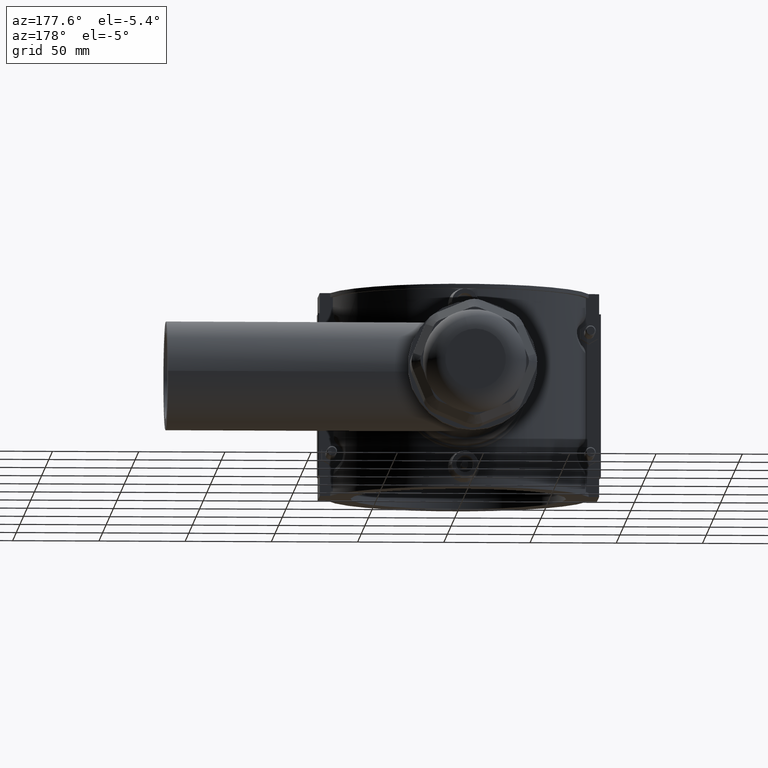
[diagram: clean part render]
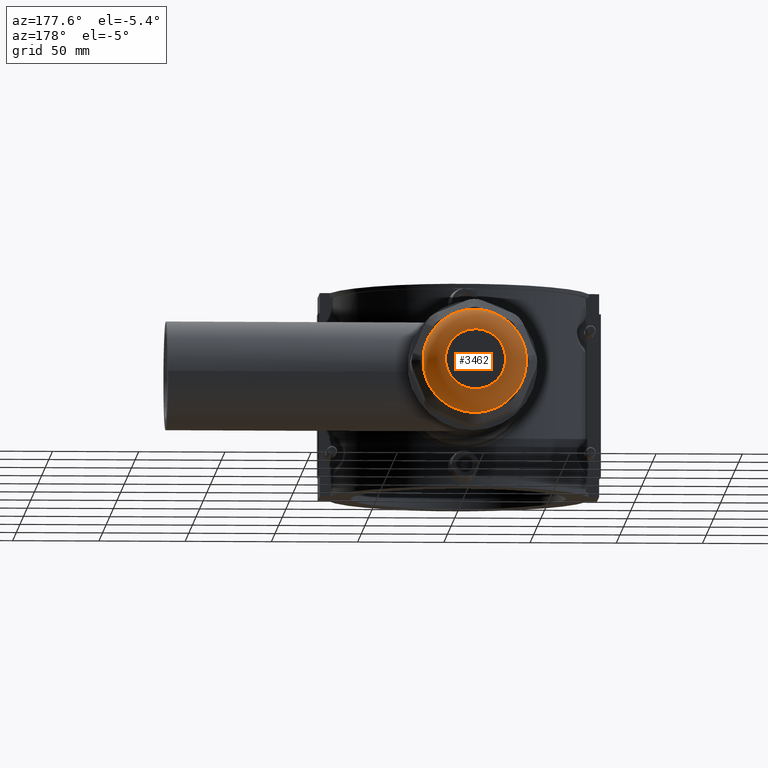
[diagram: same view with one face highlighted and labeled with its STEP entity id]
A machine part, auxiliary view. The second image highlights one B-rep face of the part: STEP entity #3462.
In plain terms, the highlighted toroidal blend (fillet) surface has major radius 17.5005 mm and minor (blend) radius 12.5 mm.
Its self-contained STEP definition (entity closure, byte-faithful):
#20=TOROIDAL_SURFACE('',#3709,17.5004840093706,12.5);
#650=FACE_BOUND('',#1090,.T.);
#703=B_SPLINE_CURVE_WITH_KNOTS('',3,(#5245,#5246,#5247,#5248,#5249,#5250,
#5251),.UNSPECIFIED.,.F.,.F.,(4,3,4),(-0.43798832508579,0.,0.43798832508579),
 .UNSPECIFIED.);
#704=B_SPLINE_CURVE_WITH_KNOTS('',3,(#5270,#5271,#5272,#5273,#5274,#5275,
#5276),.UNSPECIFIED.,.F.,.F.,(4,3,4),(-0.437988325085781,0.,0.437988325085782),
 .UNSPECIFIED.);
#705=B_SPLINE_CURVE_WITH_KNOTS('',3,(#5292,#5293,#5294,#5295,#5296,#5297,
#5298),.UNSPECIFIED.,.F.,.F.,(4,3,4),(-0.437988325085785,0.,0.437988325085785),
 .UNSPECIFIED.);
#706=B_SPLINE_CURVE_WITH_KNOTS('',3,(#5314,#5315,#5316,#5317,#5318,#5319,
#5320),.UNSPECIFIED.,.F.,.F.,(4,3,4),(-0.43798832508578,0.,0.43798832508578),
 .UNSPECIFIED.);
#707=B_SPLINE_CURVE_WITH_KNOTS('',3,(#5336,#5337,#5338,#5339,#5340,#5341,
#5342),.UNSPECIFIED.,.F.,.F.,(4,3,4),(-0.437988325085781,0.,0.437988325085781),
 .UNSPECIFIED.);
#708=B_SPLINE_CURVE_WITH_KNOTS('',3,(#5358,#5359,#5360,#5361,#5362,#5363,
#5364),.UNSPECIFIED.,.F.,.F.,(4,3,4),(-0.437988325085785,0.,0.437988325085785),
 .UNSPECIFIED.);
#709=B_SPLINE_CURVE_WITH_KNOTS('',3,(#5380,#5381,#5382,#5383,#5384,#5385,
#5386),.UNSPECIFIED.,.F.,.F.,(4,3,4),(-0.437988325085781,0.,0.437988325085781),
 .UNSPECIFIED.);
#710=B_SPLINE_CURVE_WITH_KNOTS('',3,(#5402,#5403,#5404,#5405,#5406,#5407,
#5408),.UNSPECIFIED.,.F.,.F.,(4,3,4),(-0.437988325085786,0.,0.437988325085785),
 .UNSPECIFIED.);
#870=FACE_OUTER_BOUND('',#1089,.T.);
#1089=EDGE_LOOP('',(#2434,#2435,#2436,#2437,#2438,#2439,#2440,#2441,#2442,
#2443,#2444,#2445,#2446,#2447,#2448,#2449));
#1090=EDGE_LOOP('',(#2450));
#1329=CIRCLE('',#3678,30.);
#1330=CIRCLE('',#3680,30.);
#1331=CIRCLE('',#3682,30.);
#1332=CIRCLE('',#3684,30.);
#1333=CIRCLE('',#3686,30.);
#1334=CIRCLE('',#3688,30.);
#1335=CIRCLE('',#3690,30.);
#1336=CIRCLE('',#3692,30.);
#1343=CIRCLE('',#3710,17.5004840093706);
#1444=VERTEX_POINT('',#5243);
#1445=VERTEX_POINT('',#5244);
#1452=VERTEX_POINT('',#5268);
#1453=VERTEX_POINT('',#5269);
#1458=VERTEX_POINT('',#5290);
#1459=VERTEX_POINT('',#5291);
#1464=VERTEX_POINT('',#5312);
#1465=VERTEX_POINT('',#5313);
#1470=VERTEX_POINT('',#5334);
#1471=VERTEX_POINT('',#5335);
#1476=VERTEX_POINT('',#5356);
#1477=VERTEX_POINT('',#5357);
#1482=VERTEX_POINT('',#5378);
#1483=VERTEX_POINT('',#5379);
#1488=VERTEX_POINT('',#5400);
#1489=VERTEX_POINT('',#5401);
#1503=VERTEX_POINT('',#5475);
#1781=EDGE_CURVE('',#1444,#1445,#703,.T.);
#1790=EDGE_CURVE('',#1452,#1453,#704,.T.);
#1798=EDGE_CURVE('',#1458,#1459,#705,.T.);
#1806=EDGE_CURVE('',#1464,#1465,#706,.T.);
#1814=EDGE_CURVE('',#1470,#1471,#707,.T.);
#1822=EDGE_CURVE('',#1476,#1477,#708,.T.);
#1830=EDGE_CURVE('',#1482,#1483,#709,.T.);
#1838=EDGE_CURVE('',#1488,#1489,#710,.T.);
#1845=EDGE_CURVE('',#1465,#1458,#1329,.T.);
#1846=EDGE_CURVE('',#1459,#1452,#1330,.T.);
#1847=EDGE_CURVE('',#1453,#1444,#1331,.T.);
#1848=EDGE_CURVE('',#1445,#1488,#1332,.T.);
#1849=EDGE_CURVE('',#1489,#1482,#1333,.T.);
#1850=EDGE_CURVE('',#1483,#1476,#1334,.T.);
#1851=EDGE_CURVE('',#1477,#1470,#1335,.T.);
#1852=EDGE_CURVE('',#1471,#1464,#1336,.T.);
#1872=EDGE_CURVE('',#1503,#1503,#1343,.T.);
#2434=ORIENTED_EDGE('',*,*,#1847,.T.);
#2435=ORIENTED_EDGE('',*,*,#1781,.T.);
#2436=ORIENTED_EDGE('',*,*,#1848,.T.);
#2437=ORIENTED_EDGE('',*,*,#1838,.T.);
#2438=ORIENTED_EDGE('',*,*,#1849,.T.);
#2439=ORIENTED_EDGE('',*,*,#1830,.T.);
#2440=ORIENTED_EDGE('',*,*,#1850,.T.);
#2441=ORIENTED_EDGE('',*,*,#1822,.T.);
#2442=ORIENTED_EDGE('',*,*,#1851,.T.);
#2443=ORIENTED_EDGE('',*,*,#1814,.T.);
#2444=ORIENTED_EDGE('',*,*,#1852,.T.);
#2445=ORIENTED_EDGE('',*,*,#1806,.T.);
#2446=ORIENTED_EDGE('',*,*,#1845,.T.);
#2447=ORIENTED_EDGE('',*,*,#1798,.T.);
#2448=ORIENTED_EDGE('',*,*,#1846,.T.);
#2449=ORIENTED_EDGE('',*,*,#1790,.T.);
#2450=ORIENTED_EDGE('',*,*,#1872,.T.);
#3462=ADVANCED_FACE('',(#870,#650),#20,.T.);
#3678=AXIS2_PLACEMENT_3D('',#5419,#4096,#4097);
#3680=AXIS2_PLACEMENT_3D('',#5421,#4100,#4101);
#3682=AXIS2_PLACEMENT_3D('',#5423,#4104,#4105);
#3684=AXIS2_PLACEMENT_3D('',#5425,#4108,#4109);
#3686=AXIS2_PLACEMENT_3D('',#5427,#4112,#4113);
#3688=AXIS2_PLACEMENT_3D('',#5429,#4116,#4117);
#3690=AXIS2_PLACEMENT_3D('',#5431,#4120,#4121);
#3692=AXIS2_PLACEMENT_3D('',#5433,#4124,#4125);
#3709=AXIS2_PLACEMENT_3D('',#5474,#4171,#4172);
#3710=AXIS2_PLACEMENT_3D('',#5476,#4173,#4174);
#4096=DIRECTION('center_axis',(0.,1.,3.06161699786838E-16));
#4097=DIRECTION('ref_axis',(1.,0.,0.));
#4100=DIRECTION('center_axis',(0.,1.,3.06161699786838E-16));
#4101=DIRECTION('ref_axis',(1.,0.,0.));
#4104=DIRECTION('center_axis',(0.,1.,3.06161699786838E-16));
#4105=DIRECTION('ref_axis',(1.,0.,0.));
#4108=DIRECTION('center_axis',(0.,1.,3.06161699786838E-16));
#4109=DIRECTION('ref_axis',(1.,0.,0.));
#4112=DIRECTION('center_axis',(0.,1.,3.06161699786838E-16));
#4113=DIRECTION('ref_axis',(1.,0.,0.));
#4116=DIRECTION('center_axis',(0.,1.,3.06161699786838E-16));
#4117=DIRECTION('ref_axis',(1.,0.,0.));
#4120=DIRECTION('center_axis',(0.,1.,3.06161699786838E-16));
#4121=DIRECTION('ref_axis',(1.,0.,0.));
#4124=DIRECTION('center_axis',(0.,1.,3.06161699786838E-16));
#4125=DIRECTION('ref_axis',(1.,0.,0.));
#4171=DIRECTION('center_axis',(0.,1.,3.06161699786838E-16));
#4172=DIRECTION('ref_axis',(-6.12323399573676E-17,0.,1.));
#4173=DIRECTION('center_axis',(0.,-1.,-3.06161699786838E-16));
#4174=DIRECTION('ref_axis',(-6.12323399573677E-17,-2.53758244407569E-16,
1.));
#5243=CARTESIAN_POINT('',(-7.09645864258842,227.11,-29.1485895839581));
#5244=CARTESIAN_POINT('',(-15.5932113282562,227.11,-25.6291193854245));
#5245=CARTESIAN_POINT('Ctrl Pts',(-7.09645864258862,227.11,-29.148589583958));
#5246=CARTESIAN_POINT('Ctrl Pts',(-8.61993483331188,226.867632042773,-28.7798822703117));
#5247=CARTESIAN_POINT('Ctrl Pts',(-10.1309586919284,226.75735376943,-28.2733600379307));
#5248=CARTESIAN_POINT('Ctrl Pts',(-11.4797868553473,226.75735376943,-27.7146571193318));
#5249=CARTESIAN_POINT('Ctrl Pts',(-12.8286150187662,226.75735376943,-27.1559542007329));
#5250=CARTESIAN_POINT('Ctrl Pts',(-14.255235541067,226.867632042773,-26.4456642891089));
#5251=CARTESIAN_POINT('Ctrl Pts',(-15.593211328256,227.11,-25.6291193854246));
#5268=CARTESIAN_POINT('',(15.5932113282561,227.11,-25.6291193854245));
#5269=CARTESIAN_POINT('',(7.09645864258854,227.11,-29.1485895839581));
#5270=CARTESIAN_POINT('Ctrl Pts',(15.593211328256,227.11,-25.6291193854246));
#5271=CARTESIAN_POINT('Ctrl Pts',(14.2552355410669,226.867632042773,-26.4456642891089));
#5272=CARTESIAN_POINT('Ctrl Pts',(12.8286150187662,226.75735376943,-27.1559542007329));
#5273=CARTESIAN_POINT('Ctrl Pts',(11.4797868553473,226.75735376943,-27.7146571193318));
#5274=CARTESIAN_POINT('Ctrl Pts',(10.1309586919285,226.75735376943,-28.2733600379307));
#5275=CARTESIAN_POINT('Ctrl Pts',(8.61993483331198,226.867632042773,-28.7798822703117));
#5276=CARTESIAN_POINT('Ctrl Pts',(7.09645864258874,227.11,-29.148589583958));
#5290=CARTESIAN_POINT('',(29.1485895839581,227.11,-7.09645864258842));
#5291=CARTESIAN_POINT('',(25.6291193854246,227.11,-15.5932113282561));
#5292=CARTESIAN_POINT('Ctrl Pts',(29.1485895839581,227.11,-7.09645864258862));
#5293=CARTESIAN_POINT('Ctrl Pts',(28.7798822703118,226.867632042773,-8.61993483331187));
#5294=CARTESIAN_POINT('Ctrl Pts',(28.2733600379308,226.75735376943,-10.1309586919284));
#5295=CARTESIAN_POINT('Ctrl Pts',(27.7146571193319,226.75735376943,-11.4797868553473));
#5296=CARTESIAN_POINT('Ctrl Pts',(27.155954200733,226.75735376943,-12.8286150187661));
#5297=CARTESIAN_POINT('Ctrl Pts',(26.445664289109,226.867632042773,-14.2552355410669));
#5298=CARTESIAN_POINT('Ctrl Pts',(25.6291193854247,227.11,-15.5932113282559));
#5312=CARTESIAN_POINT('',(25.6291193854246,227.11,15.5932113282562));
#5313=CARTESIAN_POINT('',(29.1485895839581,227.11,7.0964586425886));
#5314=CARTESIAN_POINT('Ctrl Pts',(25.6291193854247,227.11,15.593211328256));
#5315=CARTESIAN_POINT('Ctrl Pts',(26.445664289109,226.867632042773,14.255235541067));
#5316=CARTESIAN_POINT('Ctrl Pts',(27.155954200733,226.75735376943,12.8286150187662));
#5317=CARTESIAN_POINT('Ctrl Pts',(27.7146571193319,226.75735376943,11.4797868553474));
#5318=CARTESIAN_POINT('Ctrl Pts',(28.2733600379307,226.75735376943,10.1309586919285));
#5319=CARTESIAN_POINT('Ctrl Pts',(28.7798822703118,226.867632042773,8.61993483331205));
#5320=CARTESIAN_POINT('Ctrl Pts',(29.148589583958,227.11,7.09645864258881));
#5334=CARTESIAN_POINT('',(7.0964586425885,227.11,29.1485895839582));
#5335=CARTESIAN_POINT('',(15.5932113282561,227.11,25.6291193854246));
#5336=CARTESIAN_POINT('Ctrl Pts',(7.09645864258871,227.11,29.1485895839581));
#5337=CARTESIAN_POINT('Ctrl Pts',(8.61993483331193,226.867632042773,28.7798822703118));
#5338=CARTESIAN_POINT('Ctrl Pts',(10.1309586919285,226.75735376943,28.2733600379308));
#5339=CARTESIAN_POINT('Ctrl Pts',(11.4797868553473,226.75735376943,27.7146571193319));
#5340=CARTESIAN_POINT('Ctrl Pts',(12.8286150187661,226.75735376943,27.1559542007331));
#5341=CARTESIAN_POINT('Ctrl Pts',(14.2552355410669,226.867632042773,26.445664289109));
#5342=CARTESIAN_POINT('Ctrl Pts',(15.5932113282559,227.11,25.6291193854247));
#5356=CARTESIAN_POINT('',(-15.5932113282562,227.11,25.6291193854246));
#5357=CARTESIAN_POINT('',(-7.0964586425885,227.11,29.1485895839582));
#5358=CARTESIAN_POINT('Ctrl Pts',(-15.593211328256,227.11,25.6291193854247));
#5359=CARTESIAN_POINT('Ctrl Pts',(-14.255235541067,226.867632042773,26.445664289109));
#5360=CARTESIAN_POINT('Ctrl Pts',(-12.8286150187662,226.75735376943,27.155954200733));
#5361=CARTESIAN_POINT('Ctrl Pts',(-11.4797868553473,226.75735376943,27.7146571193319));
#5362=CARTESIAN_POINT('Ctrl Pts',(-10.1309586919285,226.75735376943,28.2733600379308));
#5363=CARTESIAN_POINT('Ctrl Pts',(-8.61993483331194,226.867632042773,28.7798822703118));
#5364=CARTESIAN_POINT('Ctrl Pts',(-7.0964586425887,227.11,29.1485895839581));
#5378=CARTESIAN_POINT('',(-29.1485895839581,227.11,7.09645864258856));
#5379=CARTESIAN_POINT('',(-25.6291193854246,227.11,15.5932113282562));
#5380=CARTESIAN_POINT('Ctrl Pts',(-29.1485895839581,227.11,7.09645864258877));
#5381=CARTESIAN_POINT('Ctrl Pts',(-28.7798822703118,226.867632042773,8.619934833312));
#5382=CARTESIAN_POINT('Ctrl Pts',(-28.2733600379307,226.75735376943,10.1309586919285));
#5383=CARTESIAN_POINT('Ctrl Pts',(-27.7146571193319,226.75735376943,11.4797868553474));
#5384=CARTESIAN_POINT('Ctrl Pts',(-27.155954200733,226.75735376943,12.8286150187662));
#5385=CARTESIAN_POINT('Ctrl Pts',(-26.445664289109,226.867632042773,14.255235541067));
#5386=CARTESIAN_POINT('Ctrl Pts',(-25.6291193854247,227.11,15.593211328256));
#5400=CARTESIAN_POINT('',(-25.6291193854246,227.11,-15.5932113282561));
#5401=CARTESIAN_POINT('',(-29.1485895839581,227.11,-7.09645864258843));
#5402=CARTESIAN_POINT('Ctrl Pts',(-25.6291193854247,227.11,-15.5932113282559));
#5403=CARTESIAN_POINT('Ctrl Pts',(-26.4456642891089,226.867632042773,-14.2552355410669));
#5404=CARTESIAN_POINT('Ctrl Pts',(-27.155954200733,226.75735376943,-12.8286150187661));
#5405=CARTESIAN_POINT('Ctrl Pts',(-27.7146571193319,226.75735376943,-11.4797868553473));
#5406=CARTESIAN_POINT('Ctrl Pts',(-28.2733600379308,226.75735376943,-10.1309586919284));
#5407=CARTESIAN_POINT('Ctrl Pts',(-28.7798822703118,226.867632042773,-8.61993483331189));
#5408=CARTESIAN_POINT('Ctrl Pts',(-29.1485895839581,227.11,-7.09645864258864));
#5419=CARTESIAN_POINT('Origin',(0.,227.11,5.03972774019115E-14));
#5421=CARTESIAN_POINT('Origin',(0.,227.11,5.03972774019115E-14));
#5423=CARTESIAN_POINT('Origin',(0.,227.11,5.03972774019115E-14));
#5425=CARTESIAN_POINT('Origin',(0.,227.11,5.03972774019115E-14));
#5427=CARTESIAN_POINT('Origin',(0.,227.11,5.03972774019115E-14));
#5429=CARTESIAN_POINT('Origin',(0.,227.11,5.03972774019115E-14));
#5431=CARTESIAN_POINT('Origin',(0.,227.11,5.03972774019115E-14));
#5433=CARTESIAN_POINT('Origin',(0.,227.11,5.03972774019115E-14));
#5474=CARTESIAN_POINT('Origin',(0.,227.,5.03635996149349E-14));
#5475=CARTESIAN_POINT('',(3.21478675884077E-15,239.5,-17.5004840093706));
#5476=CARTESIAN_POINT('Origin',(0.,239.5,5.41906208622704E-14));